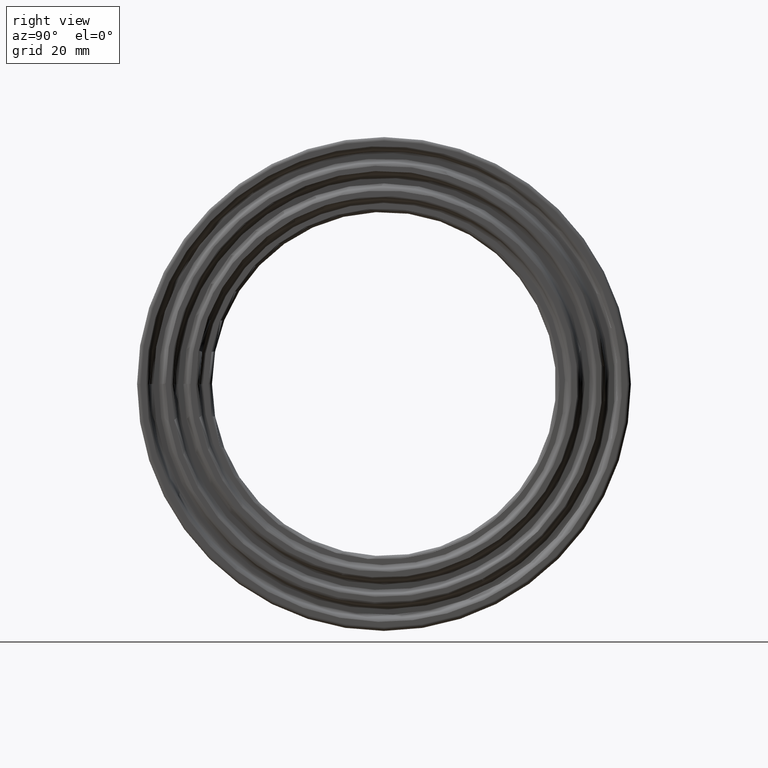
[diagram: clean part render]
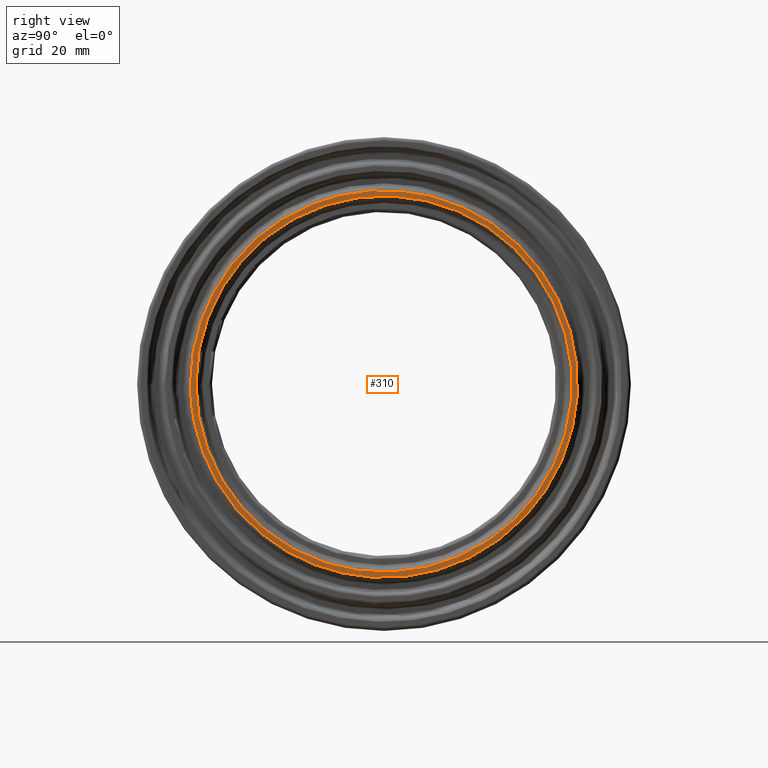
[diagram: same view with one face highlighted and labeled with its STEP entity id]
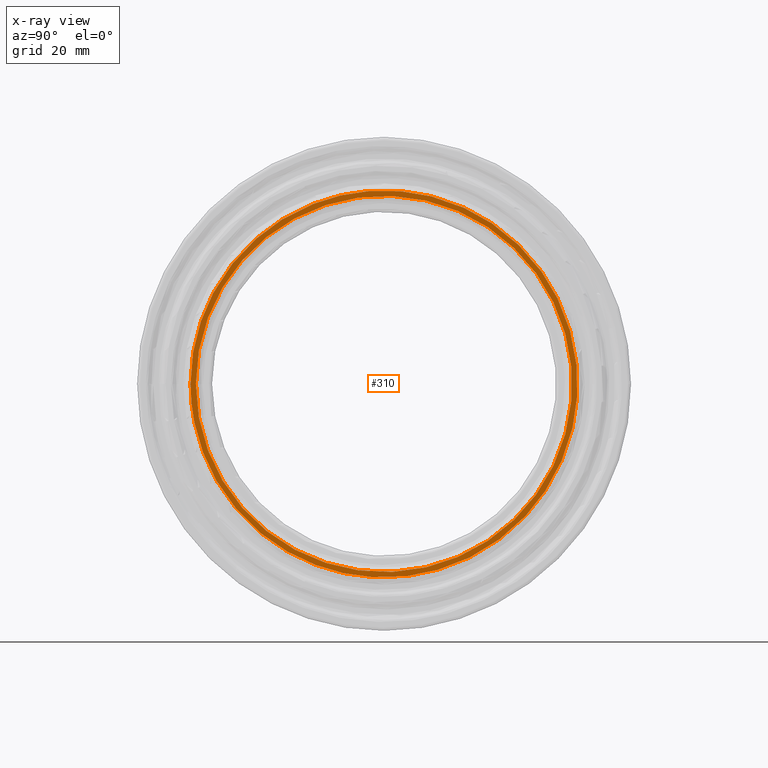
[diagram: x-ray of the same camera — body ghosted, the highlighted face saturated]
A machine part, right view. The second image highlights one B-rep face of the part: STEP entity #310.
The next image is the same camera in x-ray: the body ghosted, the highlighted face saturated — about 0% of this face is hidden behind the body in this view.
In plain terms, the highlighted planar face has unit normal (1, 0, 0).
Its self-contained STEP definition (entity closure, byte-faithful):
#26=B_SPLINE_CURVE_WITH_KNOTS('',3,(#731,#732,#733,#734,#735,#736,#737,
#738,#739,#740,#741,#742,#743,#744,#745,#746,#747,#748,#749,#750,#751,#752,
#753,#754,#755,#756,#757,#758,#759,#760,#761,#762,#763,#764,#765),
 .UNSPECIFIED.,.T.,.F.,(4,1,1,1,1,1,1,1,1,1,1,1,1,1,1,1,1,1,1,1,1,1,1,1,
1,1,1,1,1,1,1,1,4),(18.3522499708499,19.6631249687677,20.9739999666856,
22.2848749646034,22.9403124635623,23.5957499625213,26.217499958357,26.8729374573159,
27.5283749562748,28.8392499541927,30.1501249521105,30.5870832847498,31.4609999500283,
32.3349166153069,33.2088332805855,34.082749945864,37.5784166069783,38.4523332722569,
39.3262499375354,40.6371249354533,41.9479999333711,43.258874931289,43.9143124302479,
44.5697499292068,47.1914999250425,47.8469374240014,48.5023749229604,49.8132499208782,
51.1241249187961,52.4349999167139,53.0904374156728,53.7458749146318,55.0567499125496),
 .UNSPECIFIED.);
#35=PLANE('',#344);
#47=FACE_BOUND('',#104,.T.);
#71=FACE_OUTER_BOUND('',#103,.T.);
#103=EDGE_LOOP('',(#241));
#104=EDGE_LOOP('',(#242));
#149=CIRCLE('',#343,57.1416666666667);
#173=VERTEX_POINT('',#727);
#174=VERTEX_POINT('',#730);
#202=EDGE_CURVE('',#173,#173,#149,.T.);
#203=EDGE_CURVE('',#174,#174,#26,.T.);
#241=ORIENTED_EDGE('',*,*,#203,.F.);
#242=ORIENTED_EDGE('',*,*,#202,.F.);
#310=ADVANCED_FACE('',(#71,#47),#35,.T.);
#343=AXIS2_PLACEMENT_3D('',#728,#399,#400);
#344=AXIS2_PLACEMENT_3D('',#729,#401,#402);
#399=DIRECTION('center_axis',(1.,0.,0.));
#400=DIRECTION('ref_axis',(0.,1.,6.12323399573677E-17));
#401=DIRECTION('center_axis',(1.,0.,0.));
#402=DIRECTION('ref_axis',(0.,0.,-1.));
#727=CARTESIAN_POINT('',(66.,-57.1416666666667,-1.04967538771918E-14));
#728=CARTESIAN_POINT('Origin',(66.,0.,0.));
#729=CARTESIAN_POINT('Origin',(66.,-59.8333333333333,0.));
#730=CARTESIAN_POINT('',(66.,-58.7699832013912,0.0477111871621069));
#731=CARTESIAN_POINT('Ctrl Pts',(66.,-58.771109087053,0.0481497641640543));
#732=CARTESIAN_POINT('Ctrl Pts',(66.,-58.7695280060628,4.42465018928384));
#733=CARTESIAN_POINT('Ctrl Pts',(66.,-57.7511788965899,13.2906869360075));
#734=CARTESIAN_POINT('Ctrl Pts',(66.,-53.3892870705165,25.7334612987953));
#735=CARTESIAN_POINT('Ctrl Pts',(66.0000000000001,-47.4490906944053,35.1640673621572));
#736=CARTESIAN_POINT('Ctrl Pts',(66.,-41.6082789235435,41.6778567302867));
#737=CARTESIAN_POINT('Ctrl Pts',(66.0000000000001,-31.7189318632252,50.502645765905));
#738=CARTESIAN_POINT('Ctrl Pts',(65.9999999999999,-19.5717200722761,56.3437015038284));
#739=CARTESIAN_POINT('Ctrl Pts',(66.0000000000001,-6.48522059920685,58.5324928256305));
#740=CARTESIAN_POINT('Ctrl Pts',(66.,2.24588552661782,59.0165287142759));
#741=CARTESIAN_POINT('Ctrl Pts',(66.0000000000001,13.3132658450992,57.7531971750875));
#742=CARTESIAN_POINT('Ctrl Pts',(66.,22.9907080670515,54.342249284422));
#743=CARTESIAN_POINT('Ctrl Pts',(66.,30.7896811330836,50.2130722913027));
#744=CARTESIAN_POINT('Ctrl Pts',(66.,36.8764674586135,46.0384409586805));
#745=CARTESIAN_POINT('Ctrl Pts',(66.,43.2865288033239,40.0776150206807));
#746=CARTESIAN_POINT('Ctrl Pts',(66.,48.8066376769603,33.1298715995075));
#747=CARTESIAN_POINT('Ctrl Pts',(66.,57.595361646958,17.856284351592));
#748=CARTESIAN_POINT('Ctrl Pts',(65.9999999999999,60.3323758993073,-0.133085821007907));
#749=CARTESIAN_POINT('Ctrl Pts',(66.0000000000001,56.3518505113991,-17.4229307017466));
#750=CARTESIAN_POINT('Ctrl Pts',(65.9999999999999,52.6295952779507,-26.9363629862758));
#751=CARTESIAN_POINT('Ctrl Pts',(66.0000000000001,46.29915411343,-36.9942641837252));
#752=CARTESIAN_POINT('Ctrl Pts',(65.9999999999999,36.9723730649406,-46.3165487287211));
#753=CARTESIAN_POINT('Ctrl Pts',(66.0000000000001,27.5353947391145,-52.2495974288838));
#754=CARTESIAN_POINT('Ctrl Pts',(66.,19.4554064431951,-55.5836052140076));
#755=CARTESIAN_POINT('Ctrl Pts',(66.0000000000001,6.7083709407038,-59.2671435413145));
#756=CARTESIAN_POINT('Ctrl Pts',(66.,-6.76853736082759,-59.2529179410679));
#757=CARTESIAN_POINT('Ctrl Pts',(66.,-19.5041178806995,-55.5685601592897));
#758=CARTESIAN_POINT('Ctrl Pts',(66.,-27.5824170508182,-52.2211194480828));
#759=CARTESIAN_POINT('Ctrl Pts',(66.,-37.0185894358602,-46.2846343111754));
#760=CARTESIAN_POINT('Ctrl Pts',(66.,-46.333402467016,-36.9485479054953));
#761=CARTESIAN_POINT('Ctrl Pts',(66.,-52.2625528182177,-27.5121133478115));
#762=CARTESIAN_POINT('Ctrl Pts',(66.,-55.5920704383129,-19.4315957704837));
#763=CARTESIAN_POINT('Ctrl Pts',(66.,-58.0461276609317,-10.922284121459));
#764=CARTESIAN_POINT('Ctrl Pts',(66.,-58.7726901680432,-4.32835066095574));
#765=CARTESIAN_POINT('Ctrl Pts',(66.,-58.771109087053,0.0481497641640543));